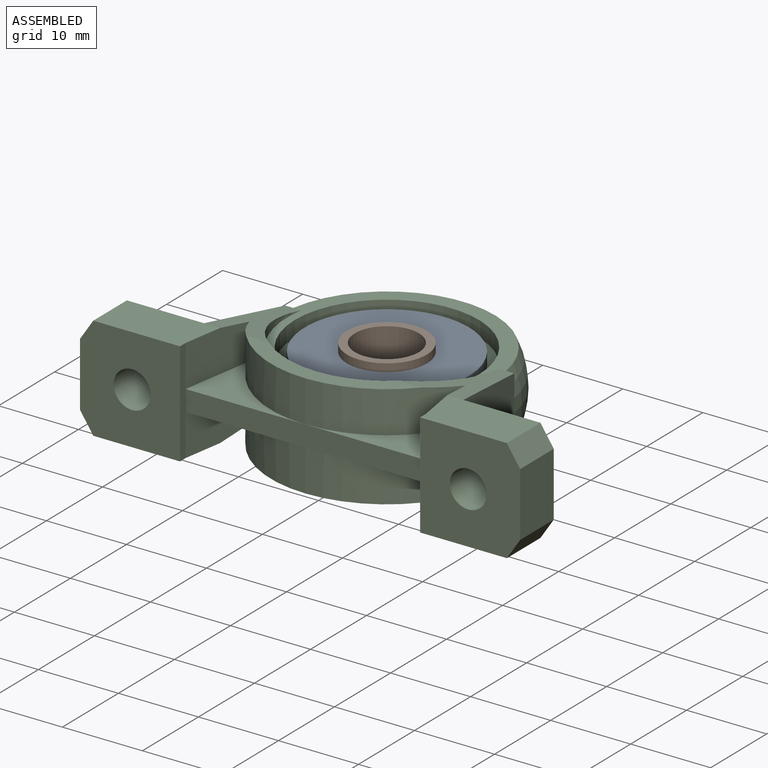
[diagram: assembled view]
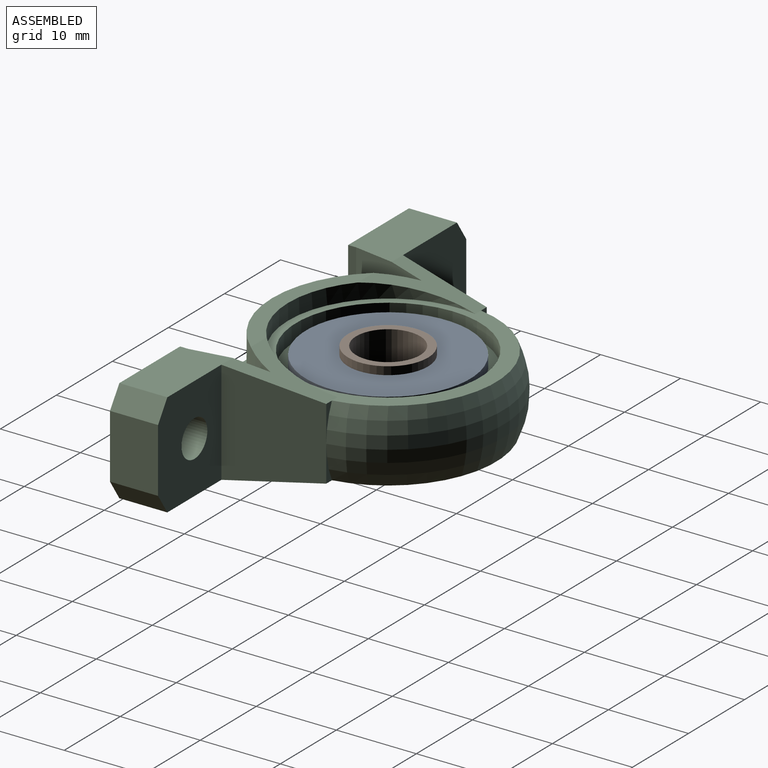
[diagram: assembled view, second angle]
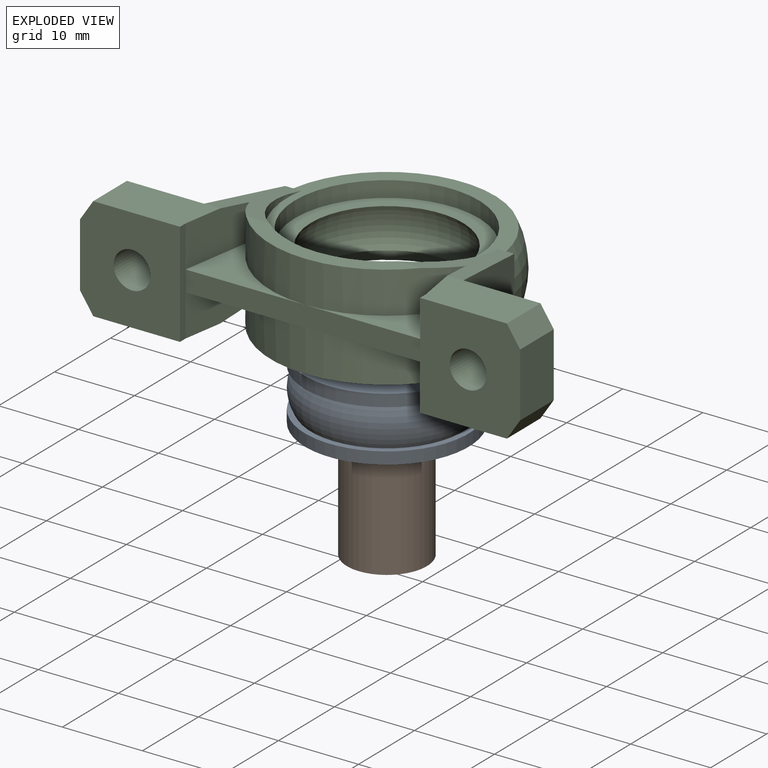
[diagram: exploded view]
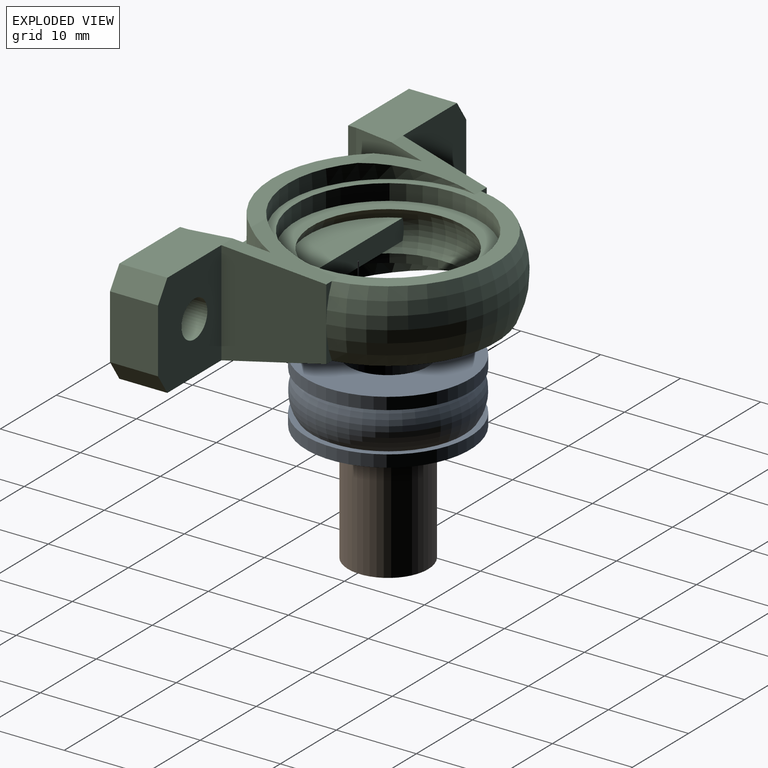
[diagram: exploded view, second angle]
ASSEMBLY  parts=3 mates=2
PART A: 8 faces, bbox 22.2x22.2x8 mm
  f0: cylinder r=10.25mm len=20.5mm, axis (0,0,-1), area 96.6mm2, adj f3,f6
  f1: cylinder r=5mm len=10mm, axis (0,0,-1), area 251.3mm2, adj f3,f4
  f2: cylinder r=10.25mm len=20.5mm, axis (0,0,-1), area 96.6mm2, adj f4,f5
  f3: plane 20.5x20.5mm, normal (0,0,1), area 251.5mm2, adj f0,f1
  f4: plane 20.5x20.5mm, normal (0,0,-1), area 251.5mm2, adj f1,f2
  f5: plane 20.5x20.5mm, normal (0,0,1), area 46.5mm2, adj f2,f7
  f6: plane 20.5x20.5mm, normal (0,0,-1), area 46.5mm2, adj f0,f7
  f7: torus R=5.71mm, axis (0,0,1), area 332.6mm2, adj f5,f6
PART B: 4 faces, bbox 10x10x13 mm
  f0: cylinder r=4mm len=13mm, axis (0,0,-1), area 326.7mm2, adj f2,f3
  f1: cylinder r=5mm len=13mm, axis (0,0,-1), area 408.4mm2, adj f2,f3
  f2: plane 10x10mm, normal (0,0,1), area 28.3mm2, adj f0,f1
  f3: plane 10x10mm, normal (0,0,-1), area 28.3mm2, adj f0,f1
PART C: 54 faces, bbox 55x29x13 mm
  f0: cylinder r=14.5mm len=27.02mm, axis (0,0,-1), area 177.3mm2, adj f1,f2,f16,f46,f47,f49,f50
  f1: plane 9.24x5.2mm, normal (0.99,-0.16,0), area 47.1mm2, adj f0,f17,f40,f47,f49
  f2: plane 9.24x5.2mm, normal (-0.99,-0.16,0), area 47.1mm2, adj f0,f15,f43,f46,f50
  f3: torus R=5.71mm, axis (0,0,-1), area 272.8mm2, adj f21,f24,f25,f26,f53
  f4: plane 4.5x1.02mm, normal (0,1,0), area 1.5mm2, adj f6,f18,f50
  f5: plane 4.5x1.02mm, normal (0,1,0), area 1.5mm2, adj f7,f18,f49
  f6: plane 13x11.79mm, normal (0.99,0.16,0), area 131.3mm2, adj f4,f27,f36,f50,f51
  f7: plane 13x11.79mm, normal (-0.99,0.16,0), area 131.3mm2, adj f5,f28,f42,f49,f52
  f8: cylinder r=14.5mm len=27.02mm, axis (0,0,-1), area 177.3mm2, adj f10,f11,f13,f45,f48,f51,f52
  f9: cylinder r=12.5mm len=25mm, axis (0,0,-1), area 63.2mm2, adj f13,f19,f51,f52
  f10: plane 9.24x5.2mm, normal (0.99,-0.16,0), area 47.1mm2, adj f8,f14,f40,f48,f52
  f11: plane 9.24x5.2mm, normal (-0.99,-0.16,0), area 47.1mm2, adj f8,f12,f43,f45,f51
  f12: plane 11.65x6mm, normal (0,0,-1), area 67.1mm2, adj f11,f30,f35,f36,f43,f51
  f13: plane 21.91x5mm, normal (0,0,-1), area 42.6mm2, adj f8,f9,f51,f52
  f14: plane 11.65x6mm, normal (0,0,-1), area 67.1mm2, adj f10,f34,f39,f40,f42,f52
  f15: plane 11.65x6mm, normal (0,0,1), area 67.1mm2, adj f2,f32,f35,f36,f43,f50
  f16: plane 21.91x5mm, normal (0,0,1), area 42.6mm2, adj f0,f29,f49,f50
  f17: plane 11.65x6mm, normal (0,0,1), area 67.1mm2, adj f1,f34,f37,f40,f42,f49
  f18: torus R=3.88mm, axis (0,0,-1), area 370.9mm2, adj f4,f5,f19,f20,f27,f28
  f19: plane 26.61x26mm, normal (0,0,-1), area 111.6mm2, adj f9,f18,f22,f51,f52
  f20: plane 26.61x26mm, normal (0,0,1), area 111.6mm2, adj f18,f23,f29,f49,f50
  f21: plane 23x23mm, normal (0,0,-1), area 131.9mm2, adj f3,f22
  f22: cylinder r=11.5mm len=23mm, axis (0,0,-1), area 144.5mm2, adj f19,f21
  f23: cylinder r=11.5mm len=23mm, axis (0,0,-1), area 144.5mm2, adj f20,f24
  f24: plane 23x23mm, normal (0,0,1), area 131.9mm2, adj f3,f23
  f25: plane 17.99x5.56mm, normal (0,0,1), area 71.5mm2, adj f3,f53
  f26: plane 17.99x5.56mm, normal (0,0,-1), area 71.5mm2, adj f3,f53
  f27: plane 4.5x1.02mm, normal (0,1,0), area 1.5mm2, adj f6,f18,f51
  f28: plane 4.5x1.02mm, normal (0,1,0), area 1.5mm2, adj f7,f18,f52
  f29: cylinder r=12.5mm len=25mm, axis (0,0,-1), area 63.2mm2, adj f16,f20,f49,f50
  f30: plane 6x2.5mm, normal (0.83,0,-0.55), area 18mm2, adj f12,f31,f35,f36
  f31: plane 8x6mm, normal (1,0,0), area 48mm2, adj f30,f32,f35,f36
  f32: plane 6x2.5mm, normal (0.83,0,0.55), area 18mm2, adj f15,f31,f35,f36
  f33: cylinder r=2.3mm len=6mm, axis (0,-1,0), area 86.7mm2, adj f35,f36
  f34: plane 13x12.5mm, normal (0,-1,0), area 141.7mm2, adj f14,f17,f37,f38,f39,f40,f41
  f35: plane 13x12.5mm, normal (0,-1,0), area 141.7mm2, adj f12,f15,f30,f31,f32,f33,f43
  f36: plane 13x11.3mm, normal (0,1,0), area 126.1mm2, adj f6,f12,f15,f30,f31,f32,f33
  f37: plane 6x2.5mm, normal (-0.83,0,0.55), area 18mm2, adj f17,f34,f38,f42
  f38: plane 8x6mm, normal (-1,0,0), area 48mm2, adj f34,f37,f39,f42
  f39: plane 6x2.5mm, normal (-0.83,0,-0.55), area 18mm2, adj f14,f34,f38,f42
  f40: plane 13x1mm, normal (1,0,0), area 13mm2, adj f1,f10,f14,f17,f34,f44
  f41: cylinder r=2.3mm len=6mm, axis (0,-1,0), area 86.7mm2, adj f34,f42
  f42: plane 13x11.3mm, normal (0,1,0), area 126.1mm2, adj f7,f14,f17,f37,f38,f39,f41
  f43: plane 13x1mm, normal (-1,0,0), area 13mm2, adj f2,f11,f12,f15,f35,f44
  f44: plane 30x2.6mm, normal (0,-1,0), area 78mm2, adj f40,f43,f45,f46,f47,f48
  f45: plane 15x9.24mm, normal (0,0,-1), area 41.1mm2, adj f8,f11,f44
  f46: plane 15x9.24mm, normal (0,0,1), area 41.1mm2, adj f0,f2,f44
  f47: plane 15x9.24mm, normal (0,0,1), area 41.1mm2, adj f0,f1,f44
  f48: plane 15x9.24mm, normal (0,0,-1), area 41.1mm2, adj f8,f10,f44
  f49: plane 11.82x8.11mm, normal (0,0.17,0.99), area 39.8mm2, adj f0,f1,f5,f7,f16,f17,f20,f29
  f50: plane 11.82x8.11mm, normal (0,0.17,0.99), area 39.8mm2, adj f0,f2,f4,f6,f15,f16,f20,f29
  f51: plane 11.82x8.11mm, normal (0,0.17,-0.99), area 39.8mm2, adj f6,f8,f9,f11,f12,f13,f19,f27
  f52: plane 11.82x8.11mm, normal (0,0.17,-0.99), area 39.8mm2, adj f7,f8,f9,f10,f13,f14,f19,f28
  f53: plane 18.42x2.61mm, normal (0,1,0), area 47.5mm2, adj f3,f25,f26
PLACE A rot(axis=(0,0,1),4.1deg) t=(5.49,-22.88,17.58)mm
PLACE B rot(axis=(0,0,1),4.1deg) t=(5.49,-22.88,14.58)mm
PLACE C t=(4.44,-22.92,17.58)mm
MATE ball C.f3 <-> A.f0  axis (0,0,-1) through (4.44,-8.42,17.58)mm
MATE revolute B.f0 <-> A.f0  axis (0,0,-1) through (4.44,-8.42,16.08)mm
